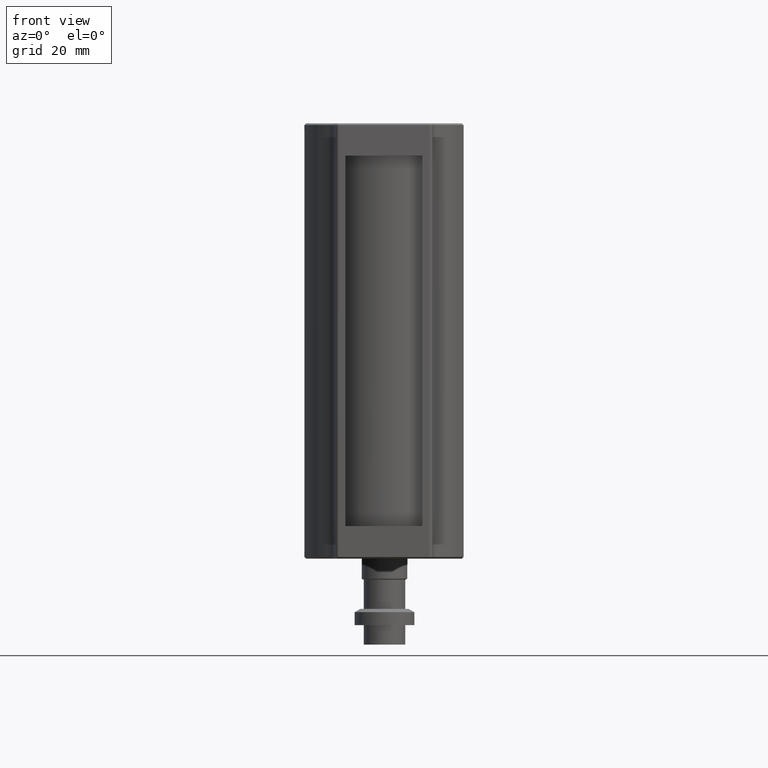
[diagram: clean part render]
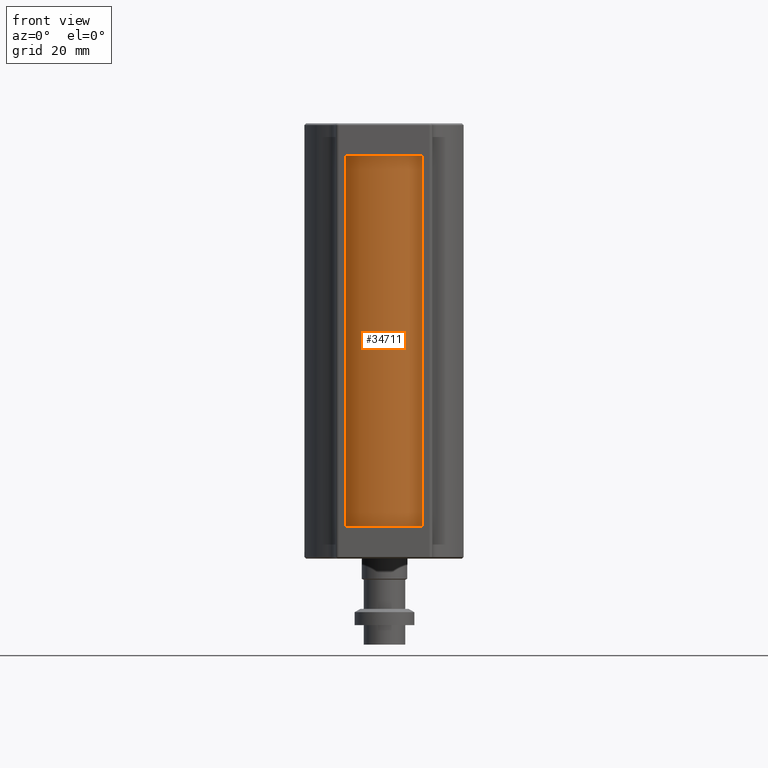
[diagram: same view with one face highlighted and labeled with its STEP entity id]
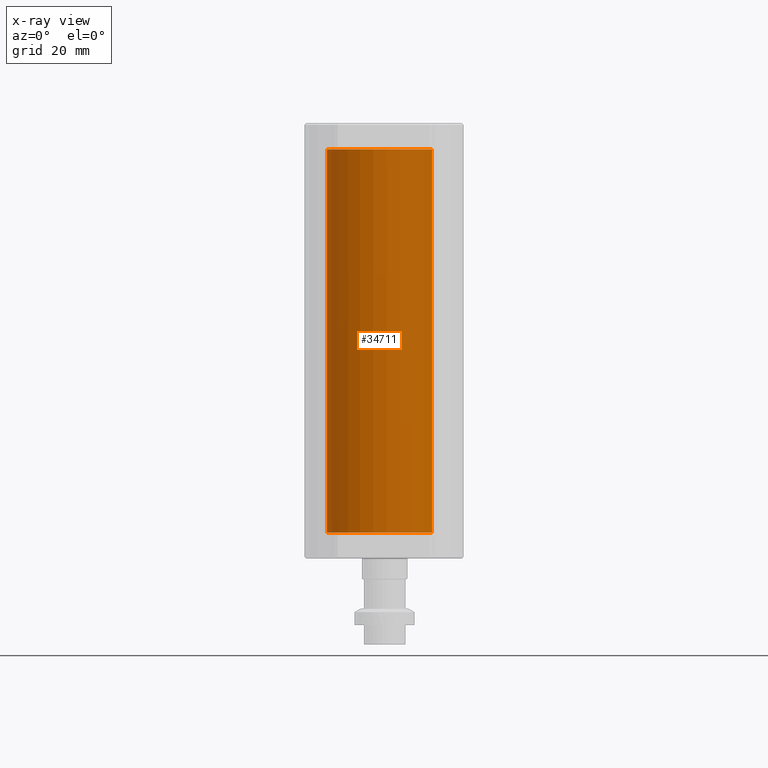
[diagram: x-ray of the same camera — body ghosted, the highlighted face saturated]
A machine part, front view. The second image highlights one B-rep face of the part: STEP entity #34711.
The next image is the same camera in x-ray: the body ghosted, the highlighted face saturated — about 0% of this face is hidden behind the body in this view.
In plain terms, the highlighted cylindrical surface (partial cylindrical patch) has radius 17.5 mm, axis along (-0, 0, -1).
Its self-contained STEP definition (entity closure, byte-faithful):
#502 = VECTOR ( 'NONE', #9005, 1000.000000000000000 ) ;
#2650 = CARTESIAN_POINT ( 'NONE',  ( -37.66201180637544600, -35.49547579693031500, 58.99999999999999300 ) ) ;
#7498 = ORIENTED_EDGE ( 'NONE', *, *, #25020, .T. ) ;
#9005 = DIRECTION ( 'NONE',  ( -0.0000000000000000000, 0.0000000000000000000, -1.000000000000000000 ) ) ;
#9754 = DIRECTION ( 'NONE',  ( -0.0000000000000000000, 0.0000000000000000000, -1.000000000000000000 ) ) ;
#12165 = AXIS2_PLACEMENT_3D ( 'NONE', #42097, #9754, #71491 ) ;
#13842 = CARTESIAN_POINT ( 'NONE',  ( -22.73435902715755200, -44.62866705207812100, -59.00000000000001400 ) ) ;
#18631 = EDGE_CURVE ( 'NONE', #33990, #56183, #28225, .T. ) ;
#21681 = CARTESIAN_POINT ( 'NONE',  ( -22.73435902715755200, -44.62866705207812100, 58.99999999999999300 ) ) ;
#22204 = LINE ( 'NONE', #35061, #502 ) ;
#22741 = ORIENTED_EDGE ( 'NONE', *, *, #66818, .F. ) ;
#24186 = FACE_OUTER_BOUND ( 'NONE', #34693, .T. ) ;
#24732 = DIRECTION ( 'NONE',  ( -0.8530087302410224200, 0.5218966431513033500, 0.0000000000000000000 ) ) ;
#25020 = EDGE_CURVE ( 'NONE', #56183, #44777, #22204, .T. ) ;
#25944 = CYLINDRICAL_SURFACE ( 'NONE', #52457, 17.50000000000000700 ) ;
#28225 = CIRCLE ( 'NONE', #12165, 17.50000000000000700 ) ;
#28796 = DIRECTION ( 'NONE',  ( 0.0000000000000000000, -0.0000000000000000000, 1.000000000000000000 ) ) ;
#31925 = VERTEX_POINT ( 'NONE', #13842 ) ;
#33575 = ORIENTED_EDGE ( 'NONE', *, *, #65563, .T. ) ;
#33990 = VERTEX_POINT ( 'NONE', #21681 ) ;
#34640 = CARTESIAN_POINT ( 'NONE',  ( -37.66201180637544600, -35.49547579693031500, -59.00000000000001400 ) ) ;
#34693 = EDGE_LOOP ( 'NONE', ( #22741, #40326, #7498, #33575 ) ) ;
#34711 = ADVANCED_FACE ( 'NONE', ( #24186 ), #25944, .T. ) ;
#35061 = CARTESIAN_POINT ( 'NONE',  ( -52.58966458559334700, -26.36228454178250000, 58.99999999999999300 ) ) ;
#38440 = DIRECTION ( 'NONE',  ( -0.0000000000000000000, 0.0000000000000000000, -1.000000000000000000 ) ) ;
#40326 = ORIENTED_EDGE ( 'NONE', *, *, #18631, .T. ) ;
#41045 = CARTESIAN_POINT ( 'NONE',  ( -52.58966458559334700, -26.36228454178250000, 58.99999999999999300 ) ) ;
#42097 = CARTESIAN_POINT ( 'NONE',  ( -37.66201180637544600, -35.49547579693031500, 58.99999999999999300 ) ) ;
#44509 = VECTOR ( 'NONE', #38440, 1000.000000000000000 ) ;
#44777 = VERTEX_POINT ( 'NONE', #47756 ) ;
#46818 = DIRECTION ( 'NONE',  ( -0.0000000000000000000, 0.0000000000000000000, -1.000000000000000000 ) ) ;
#47756 = CARTESIAN_POINT ( 'NONE',  ( -52.58966458559334700, -26.36228454178250000, -59.00000000000001400 ) ) ;
#48000 = LINE ( 'NONE', #65883, #44509 ) ;
#52457 = AXIS2_PLACEMENT_3D ( 'NONE', #2650, #46818, #24732 ) ;
#56183 = VERTEX_POINT ( 'NONE', #41045 ) ;
#56461 = DIRECTION ( 'NONE',  ( -0.8530087302410224200, 0.5218966431513033500, 0.0000000000000000000 ) ) ;
#64500 = CIRCLE ( 'NONE', #70100, 17.50000000000000700 ) ;
#65563 = EDGE_CURVE ( 'NONE', #44777, #31925, #64500, .T. ) ;
#65883 = CARTESIAN_POINT ( 'NONE',  ( -22.73435902715754900, -44.62866705207812100, 58.99999999999999300 ) ) ;
#66818 = EDGE_CURVE ( 'NONE', #33990, #31925, #48000, .T. ) ;
#70100 = AXIS2_PLACEMENT_3D ( 'NONE', #34640, #28796, #56461 ) ;
#71491 = DIRECTION ( 'NONE',  ( -0.8530087302410224200, 0.5218966431513033500, 0.0000000000000000000 ) ) ;